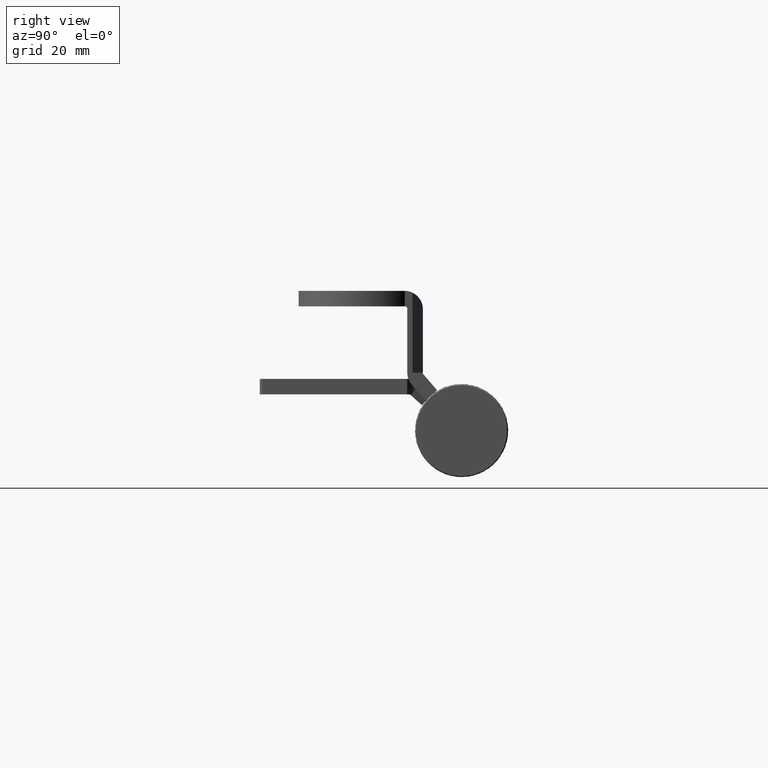
[diagram: clean part render]
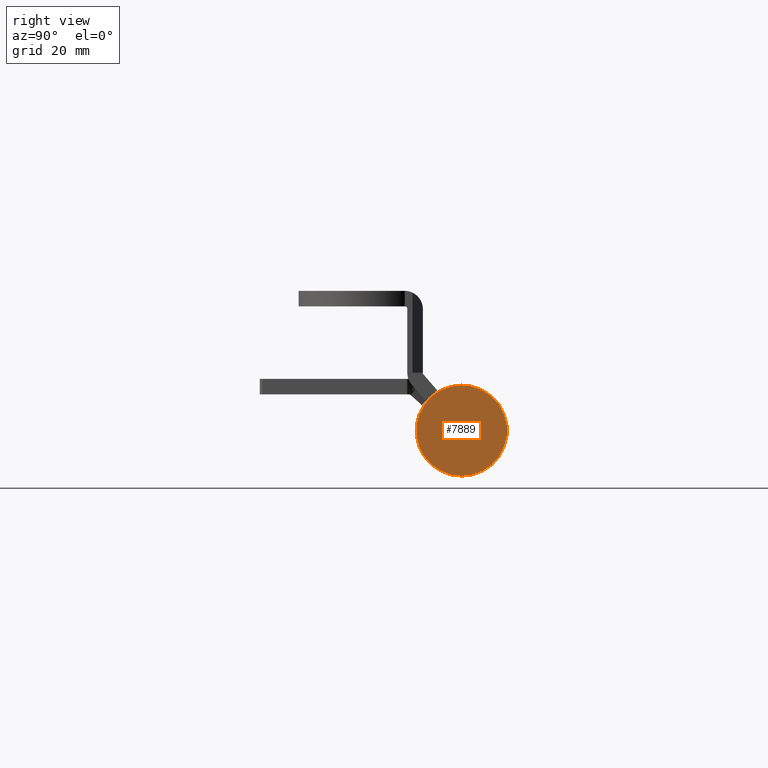
[diagram: same view with one face highlighted and labeled with its STEP entity id]
A machine part, right view. The second image highlights one B-rep face of the part: STEP entity #7889.
In plain terms, the highlighted planar face has unit normal (-1, -0, 0).
Its self-contained STEP definition (entity closure, byte-faithful):
#16 = CIRCLE ( 'NONE', #39732, 8.800000000000004263 ) ;
#1984 = VERTEX_POINT ( 'NONE', #7108 ) ;
#4672 = VERTEX_POINT ( 'NONE', #48198 ) ;
#5330 = EDGE_LOOP ( 'NONE', ( #33064, #33951 ) ) ;
#6700 = PLANE ( 'NONE',  #10150 ) ;
#7108 = CARTESIAN_POINT ( 'NONE',  ( 37.00000000000000711, 1.089935651241144357E-15, -8.799999999999997158 ) ) ;
#7889 = ADVANCED_FACE ( 'NONE', ( #10392 ), #6700, .F. ) ;
#9088 = CARTESIAN_POINT ( 'NONE',  ( 37.00000000000000711, -4.814824860968089633E-32, 8.673617379884039416E-16 ) ) ;
#10150 = AXIS2_PLACEMENT_3D ( 'NONE', #36718, #11092, #21606 ) ;
#10392 = FACE_OUTER_BOUND ( 'NONE', #5330, .T. ) ;
#11092 = DIRECTION ( 'NONE',  ( -1.000000000000000000, -4.650432772331849413E-32, 2.203093373026480964E-32 ) ) ;
#21606 = DIRECTION ( 'NONE',  ( 2.203093373026480964E-32, 0.000000000000000000, 1.000000000000000000 ) ) ;
#23238 = DIRECTION ( 'NONE',  ( -1.000000000000000000, -4.650432772331849413E-32, -1.263828560216439197E-31 ) ) ;
#23945 = DIRECTION ( 'NONE',  ( 0.000000000000000000, 0.000000000000000000, 1.000000000000000000 ) ) ;
#25756 = CARTESIAN_POINT ( 'NONE',  ( 37.00000000000000711, -4.814824860968089633E-32, 8.673617379884039416E-16 ) ) ;
#31785 = EDGE_CURVE ( 'NONE', #4672, #1984, #46483, .T. ) ;
#32833 = DIRECTION ( 'NONE',  ( 0.000000000000000000, 0.000000000000000000, 1.000000000000000000 ) ) ;
#33064 = ORIENTED_EDGE ( 'NONE', *, *, #31785, .F. ) ;
#33951 = ORIENTED_EDGE ( 'NONE', *, *, #35642, .F. ) ;
#35642 = EDGE_CURVE ( 'NONE', #1984, #4672, #16, .T. ) ;
#36718 = CARTESIAN_POINT ( 'NONE',  ( 37.00000000000000711, 8.800000000000002487, 1.061530116225963303E-15 ) ) ;
#39732 = AXIS2_PLACEMENT_3D ( 'NONE', #25756, #39888, #32833 ) ;
#39888 = DIRECTION ( 'NONE',  ( -1.000000000000000000, -4.650432772331849413E-32, -1.263828560216439197E-31 ) ) ;
#41821 = AXIS2_PLACEMENT_3D ( 'NONE', #9088, #23238, #23945 ) ;
#46483 = CIRCLE ( 'NONE', #41821, 8.800000000000004263 ) ;
#48198 = CARTESIAN_POINT ( 'NONE',  ( 37.00000000000000711, -4.814824860968089633E-32, 8.800000000000006040 ) ) ;